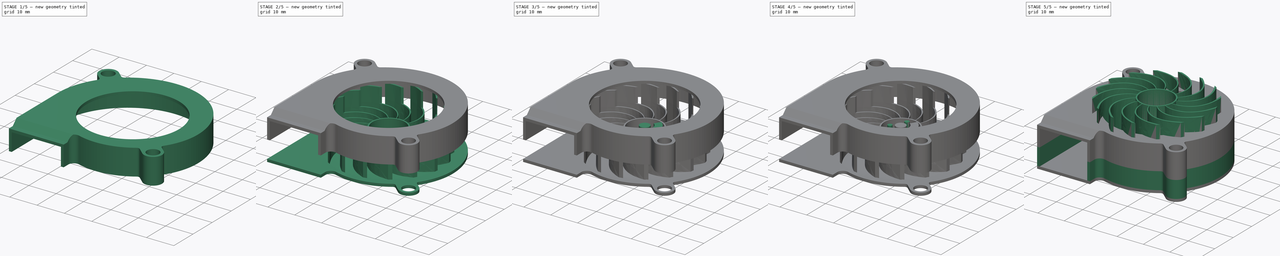
[diagram: build sequence overview — one tinted view per stage of 5, left to right]
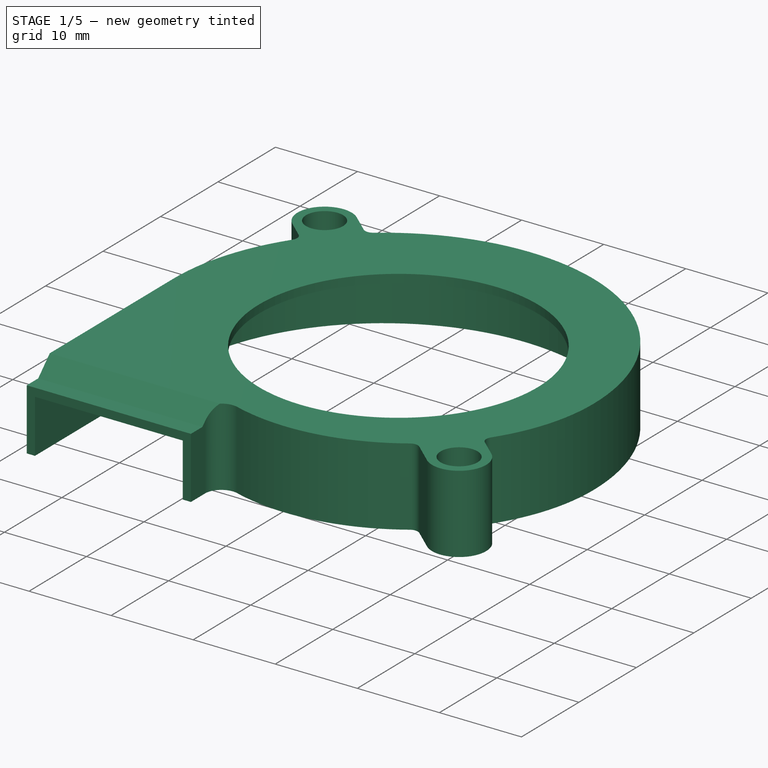
[diagram: stage 1 of 5 — iso view after this stage's code; geometry added in this stage tinted green]
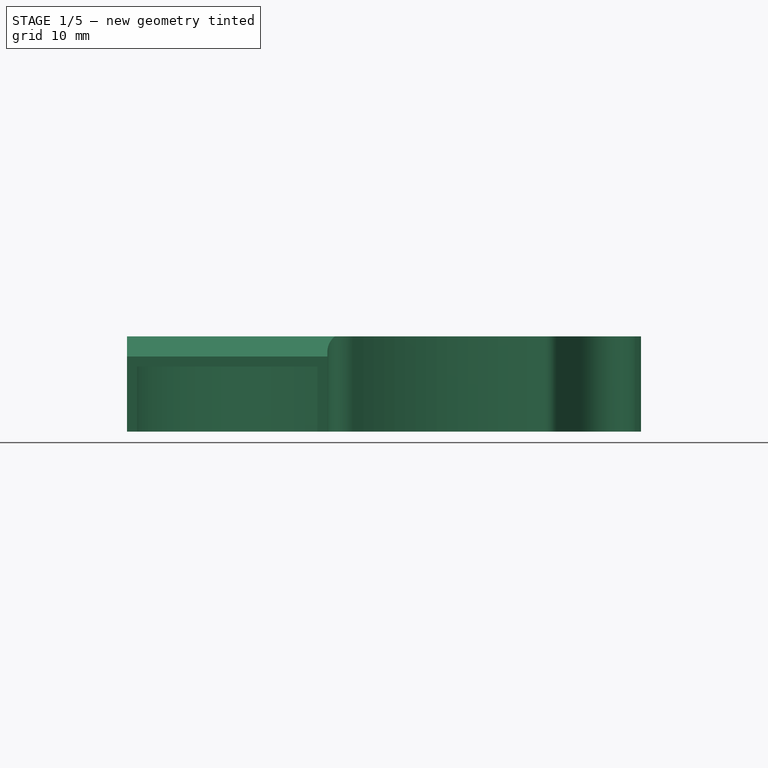
[diagram: stage 1 of 5 — front view after this stage's code; geometry added in this stage tinted green]
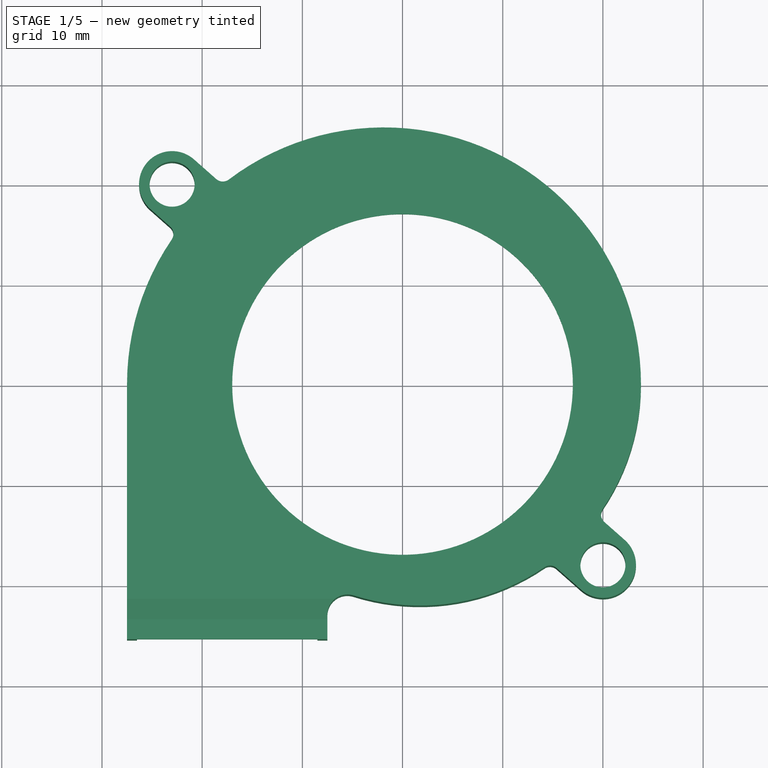
[diagram: stage 1 of 5 — top view after this stage's code; geometry added in this stage tinted green]
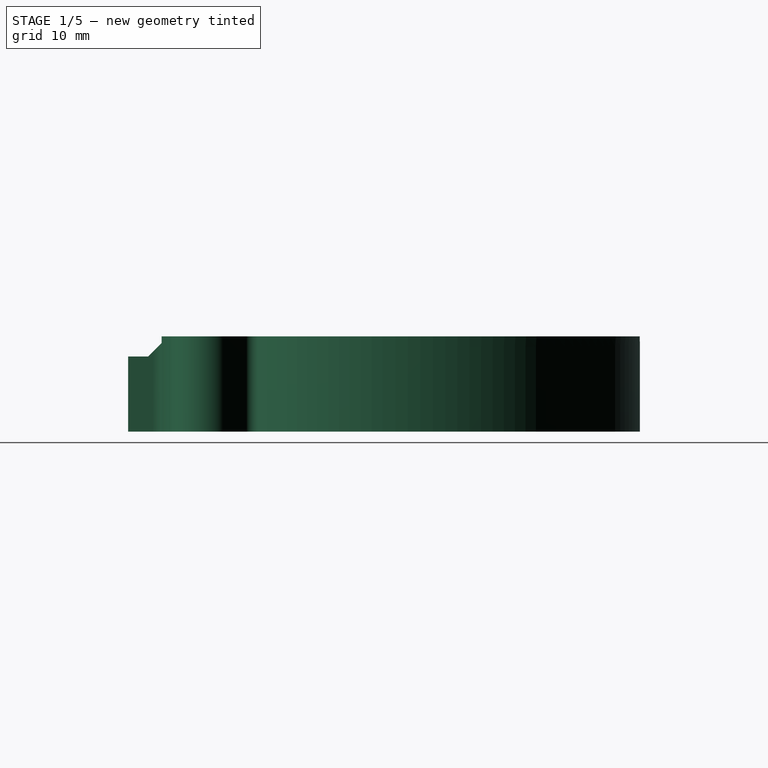
[diagram: stage 1 of 5 — right view after this stage's code; geometry added in this stage tinted green]
FCSTD DOCUMENT  (FreeCAD 0.19R24291 (Git))
Label: 5015-fan-mod
License: Other
LicenseURL: GPL3
objects: Part::Feature×14, Part::Cylinder×13, Part::MultiFuse×8, Sketcher::SketchObject×6, Part::Cut×5, PartDesign::Pad×4, Part::Extrusion×4, PartDesign::Body×3, App::Part×2, PartDesign::Plane×2, Part::FeaturePython×2, Part::MultiCommon×2, PartDesign::Revolution×1, PartDesign::PolarPattern×1, PartDesign::Pocket×1, Part::Box×1, Part::Chamfer×1
note: 74 computed .brp shape members not serialized (recipe doc carries the construction recipe); baked Part::Feature solids carry a one-line shape summary decoded from their .brp

FEATURE [Part::Feature] Part__Feature004_cs002  label="wall-base-profile002"
  Placement = pos=(0,0,3.5) rot=(0,0,1;0rad)
  shape: bbox 51.3 x 51.07 x 3e-07 mm, 0 faces, 0 solids (baked)
FEATURE [Part::Extrusion] Extrude002
  Base = -> Part__Feature004_cs002
  Dir = (0,0,1)
  DirMode = 2
  FaceMakerClass = Part::FaceMakerBullseye
  LengthFwd = 8.5
  LengthRev = 0
  Solid = true
  Symmetric = false
FEATURE [Part::Feature] Fusion001_cs002  label="flat-base-profile002"
  Placement = pos=(0,0,14) rot=(0,0,1;0rad)
  shape: bbox 51.3 x 51.07 x 4e-07 mm, 0 faces, 0 solids (baked)
FEATURE [Part::Extrusion] Extrude003
  Base = -> Fusion001_cs002
  Dir = (0,0,1)
  DirMode = 2
  FaceMakerClass = Part::FaceMakerBullseye
  LengthFwd = 1
  LengthRev = 0
  Placement = pos=(0,0,2) rot=(0,0,1;0rad)
  Solid = true
  Symmetric = false
FEATURE [Part::Cylinder] Cylinder008
  Angle = 360
  AttacherType = Attacher::AttachEngine3D
  Height = 21
  Radius = 17
FEATURE [Part::MultiFuse] Fusion009
  Shapes = -> [Extrude003,Extrude002]
FEATURE [Part::Cut] Cut004
  Base = -> Fusion009
  Tool = -> Cylinder008
FEATURE [PartDesign::Body] Body002002
  Group = -> [Sketch007,Pad003]
  Origin = -> Origin005
  Tip = -> Pad003
FEATURE [Part::Feature] Body002002001
  Placement = pos=(-12.5,-18.4,10) rot=(0,0,1;3.14159rad)
  shape: bbox 15 x 4 x 3 mm, 8 faces (baked)
FEATURE [Part::Feature] Body002002002
  Placement = pos=(-7.5,-18.4,10) rot=(0,0,1;3.14159rad)
  shape: bbox 15 x 4 x 3 mm, 8 faces (baked)
FEATURE [Part::Box] Box  label="Cube"
  AttacherType = Attacher::AttachEngine3D
  Height = 10
  Length = 22
  Placement = pos=(-27.5,-31.4,15) rot=(0,0,1;0rad)
  Width = 10
FEATURE [Part::Chamfer] Chamfer
  Base = -> Box
  Edges = 1 edges r=2: [Edge11]
FEATURE [Part::MultiFuse] Fusion012
  Shapes = -> [Body002002002,Body002002001,Cut004]
FEATURE [Part::Cut] Cut006
  Base = -> Fusion012
  Tool = -> Chamfer
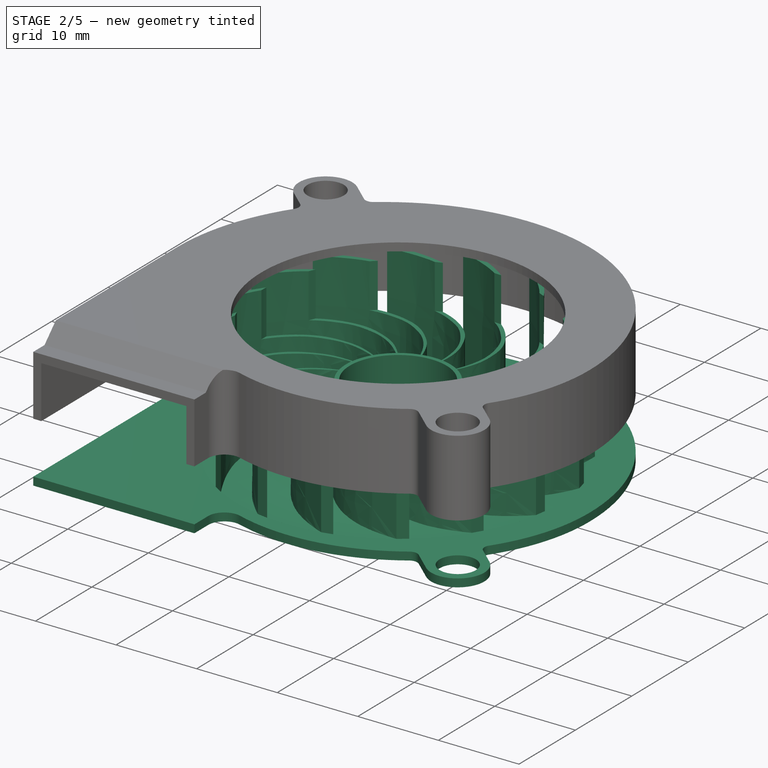
[diagram: stage 2 of 5 — iso view after this stage's code; geometry added in this stage tinted green]
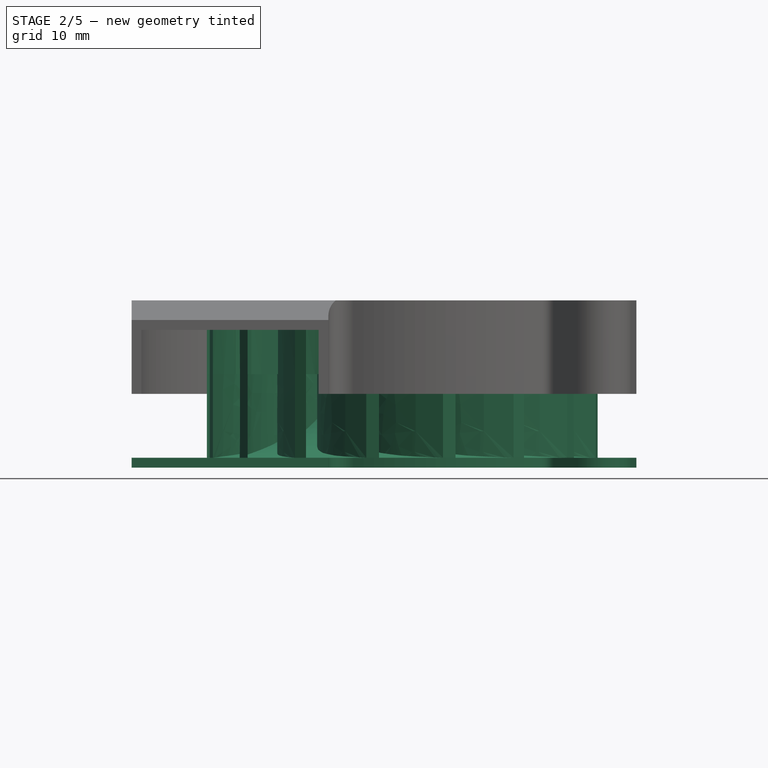
[diagram: stage 2 of 5 — front view after this stage's code; geometry added in this stage tinted green]
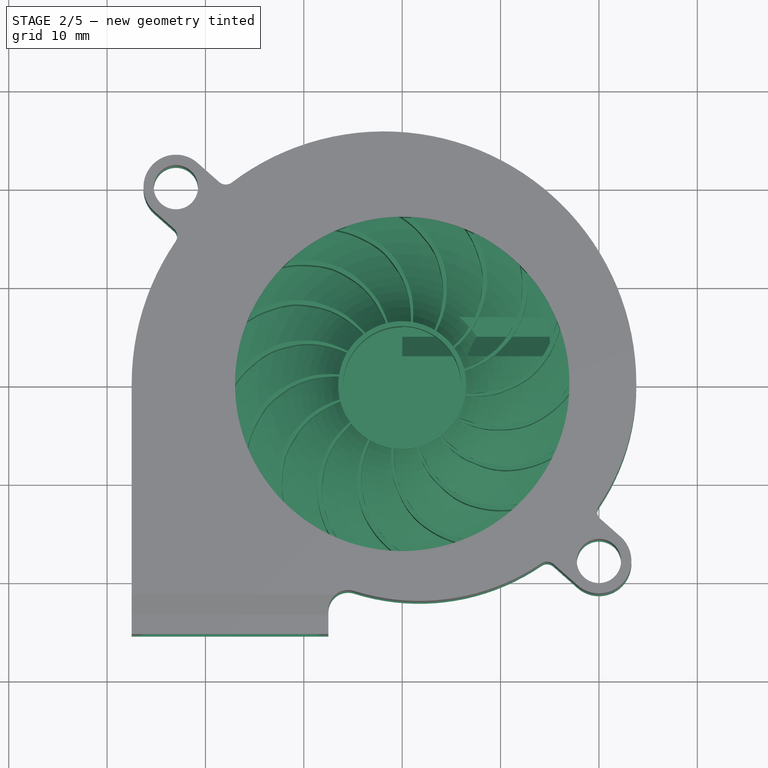
[diagram: stage 2 of 5 — top view after this stage's code; geometry added in this stage tinted green]
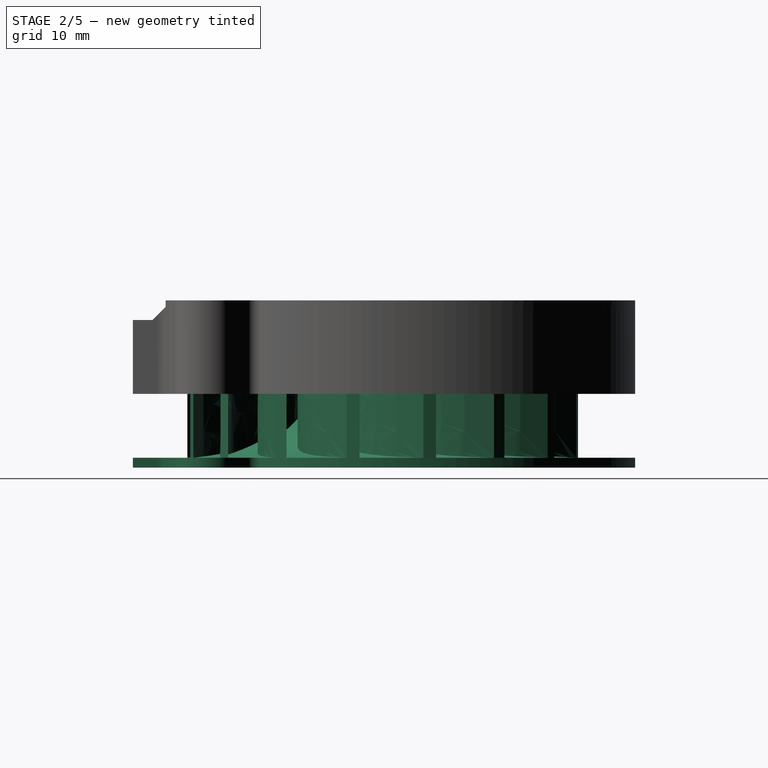
[diagram: stage 2 of 5 — right view after this stage's code; geometry added in this stage tinted green]
FEATURE [Part::Cylinder] Cylinder
  Angle = 360
  AttacherType = Attacher::AttachEngine3D
  Height = 9.5
  Radius = 24
FEATURE [Part::Feature] Fusion001_cs001  label="flat-base-profile001"
  shape: bbox 51.3 x 51.07 x 4e-07 mm, 0 faces, 0 solids (baked)
FEATURE [Part::Extrusion] Extrude  label="bottom-plate"
  Base = -> Fusion001_cs001
  Dir = (0,0,1)
  DirMode = 2
  FaceMakerClass = Part::FaceMakerBullseye
  LengthFwd = 1
  LengthRev = 0
  Solid = true
  Symmetric = false
FEATURE [PartDesign::Body] Body002  label="ramp"
  Group = -> [Sketch004,Revolution]
  Origin = -> Origin004
  Tip = -> Revolution
FEATURE [Part::FeaturePython] Tube001  # WARN: FeaturePython — macro-defined, semantics opaque (R4)
  AttacherType = Attacher::AttachEngine3D
  Height = 15
  InnerRadius = 17
  OuterRadius = 20
FEATURE [Part::Feature] Body002001  label="ramp001"
  Placement = pos=(0,0,-1) rot=(0,0,1;0rad)
  shape: bbox 40 x 40 x 9.5 mm, 4 faces (baked)
FEATURE [Part::MultiFuse] Fusion007
  Shapes = -> [Tube001,Cylinder]
FEATURE [Part::MultiCommon] Common
  Shapes = -> [Body003,Fusion007]
FEATURE [Part::Cylinder] Cylinder012
  Angle = 360
  AttacherType = Attacher::AttachEngine3D
  Height = 1
  Placement = pos=(0,0,-1) rot=(0,0,1;0rad)
  Radius = 25
FEATURE [Part::Cut] Cut
  Base = -> Body002001
  Tool = -> Cylinder012
FEATURE [Sketcher::SketchObject] Sketch007
  FullyConstrained = false
  MapMode = 5
  Placement = pos=(0,0,0) rot=(0.57735,0.57735,0.57735;2.0944rad)
  Support = -> [YZ_Plane005]
  sketch-geometry (6):
    g0: LineSegment StartX=5 StartY=4 StartZ=0 EndX=7 EndY=4 EndZ=0
    g1: LineSegment StartX=5 StartY=4 StartZ=0 EndX=3 EndY=6 EndZ=0
    g2: LineSegment StartX=7 StartY=4 StartZ=0 EndX=7 EndY=5 EndZ=0
    g3: LineSegment StartX=5 StartY=5 StartZ=0 EndX=7 EndY=5 EndZ=0
    g4: LineSegment StartX=5 StartY=5 StartZ=0 EndX=3 EndY=7 EndZ=0
    g5: LineSegment StartX=3 StartY=7 StartZ=0 EndX=3 EndY=6 EndZ=0
  constraints (10):
    c: Horizontal(g0)
    c: Coincident(g1,g0)
    c: Coincident(g2,g0)
    c: Vertical(g2)
    c: Coincident(g3,g2)
    c: Horizontal(g3)
    c: Coincident(g4,g3)
    c: Coincident(g5,g4)
    c: Coincident(g5,g1)
    c: Vertical(g5)
FEATURE [PartDesign::Pad] Pad003
  Direction = (1,1,1)
  Length = 15
  Length2 = 100
  Placement = pos=(0,0,0) rot=(0.57735,0.57735,0.57735;2.0944rad)
  Profile = -> Sketch007
  Type = 0
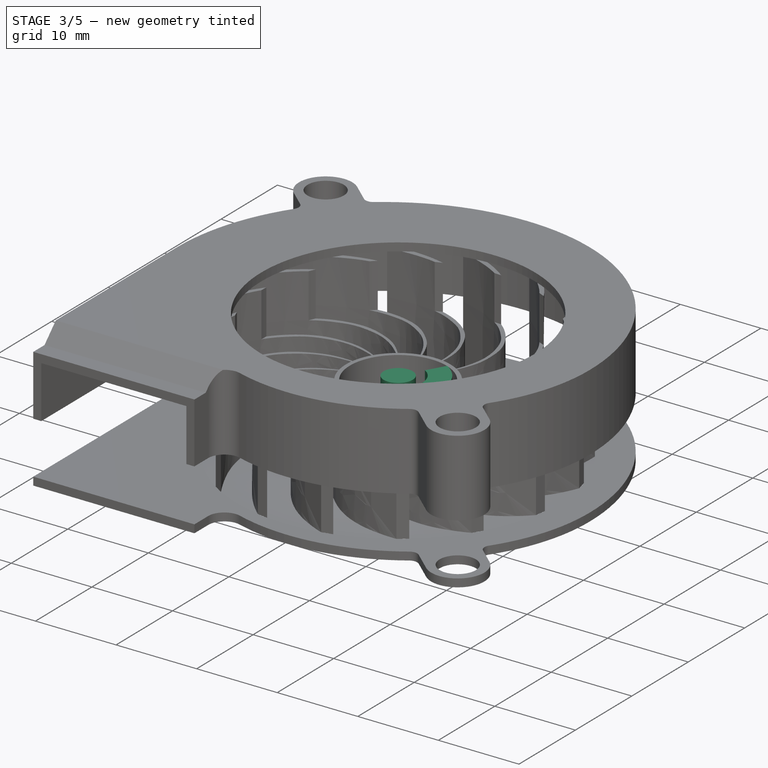
[diagram: stage 3 of 5 — iso view after this stage's code; geometry added in this stage tinted green]
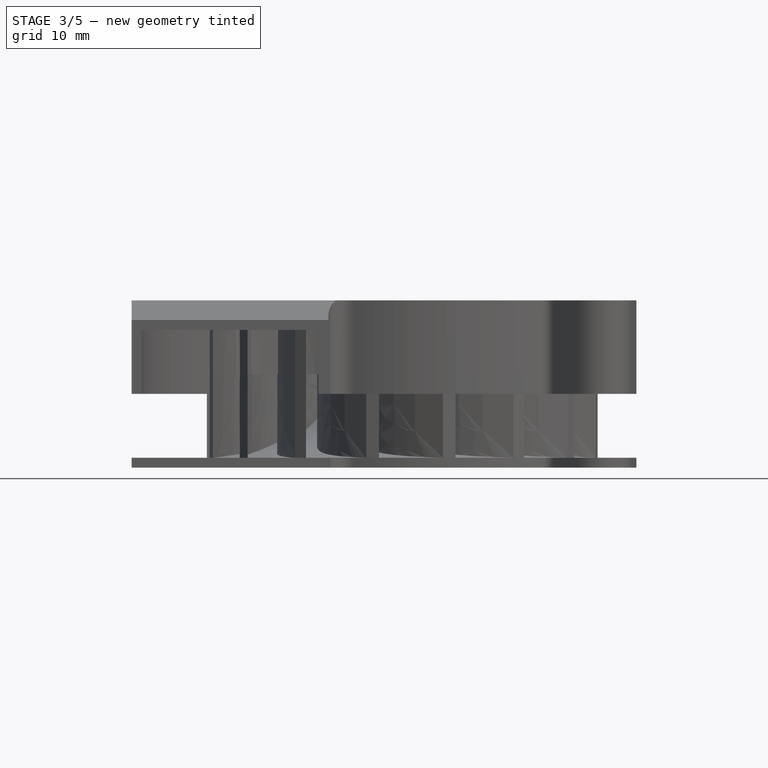
[diagram: stage 3 of 5 — front view after this stage's code; geometry added in this stage tinted green]
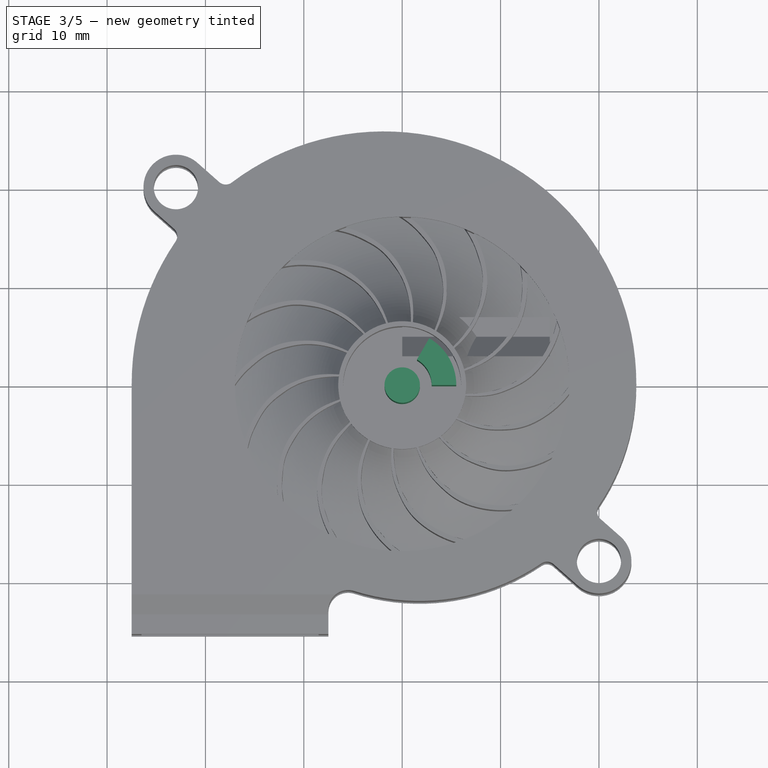
[diagram: stage 3 of 5 — top view after this stage's code; geometry added in this stage tinted green]
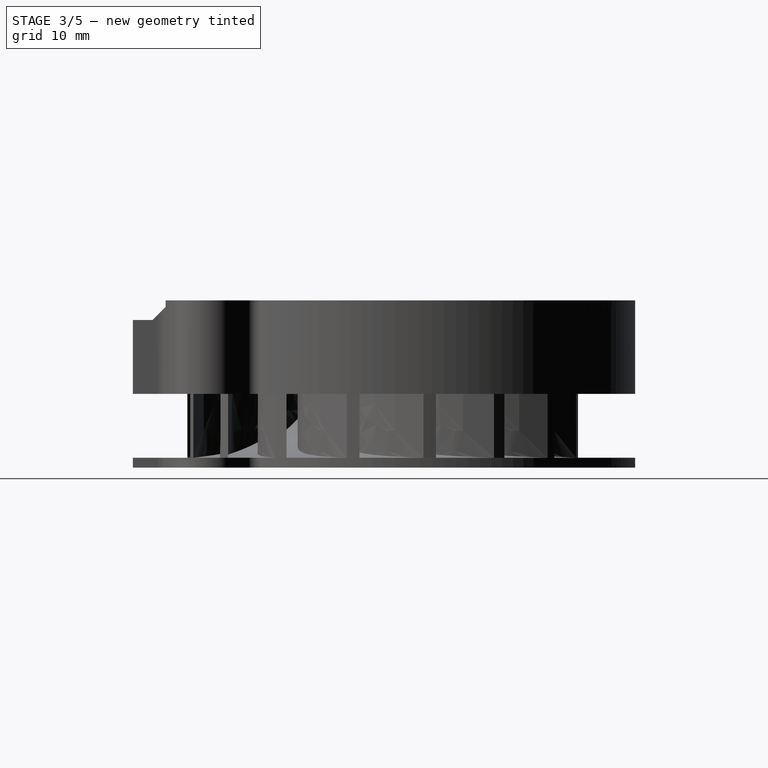
[diagram: stage 3 of 5 — right view after this stage's code; geometry added in this stage tinted green]
FEATURE [Part::Cylinder] Cylinder006
  Angle = 360
  AttacherType = Attacher::AttachEngine3D
  Height = 0.6
  Placement = pos=(0,3.3,0) rot=(0,0,1;0rad)
  Radius = 1.4
FEATURE [Part::Cylinder] Cylinder007
  Angle = 360
  AttacherType = Attacher::AttachEngine3D
  Height = 10
  Radius = 1.8
FEATURE [Part::FeaturePython] Tube  # WARN: FeaturePython — macro-defined, semantics opaque (R4)
  AttacherType = Attacher::AttachEngine3D
  Height = 10
  InnerRadius = 3
  OuterRadius = 5.5
FEATURE [Part::Cylinder] Cylinder009
  Angle = 60
  AttacherType = Attacher::AttachEngine3D
  Height = 10
  Radius = 5.5
FEATURE [Part::Cylinder] Cylinder010
  Angle = 60
  AttacherType = Attacher::AttachEngine3D
  Height = 2
  Radius = 6
FEATURE [Part::MultiCommon] Common001
  Shapes = -> [Cylinder009,Tube]
FEATURE [Part::Cylinder] Cylinder011
  Angle = 360
  AttacherType = Attacher::AttachEngine3D
  Height = 10
  Radius = 4
FEATURE [Part::Cut] Cut003
  Base = -> Cylinder010
  Tool = -> Cylinder011
FEATURE [Part::MultiFuse] Fusion010
  Shapes = -> [Extrude,Cut,Common]
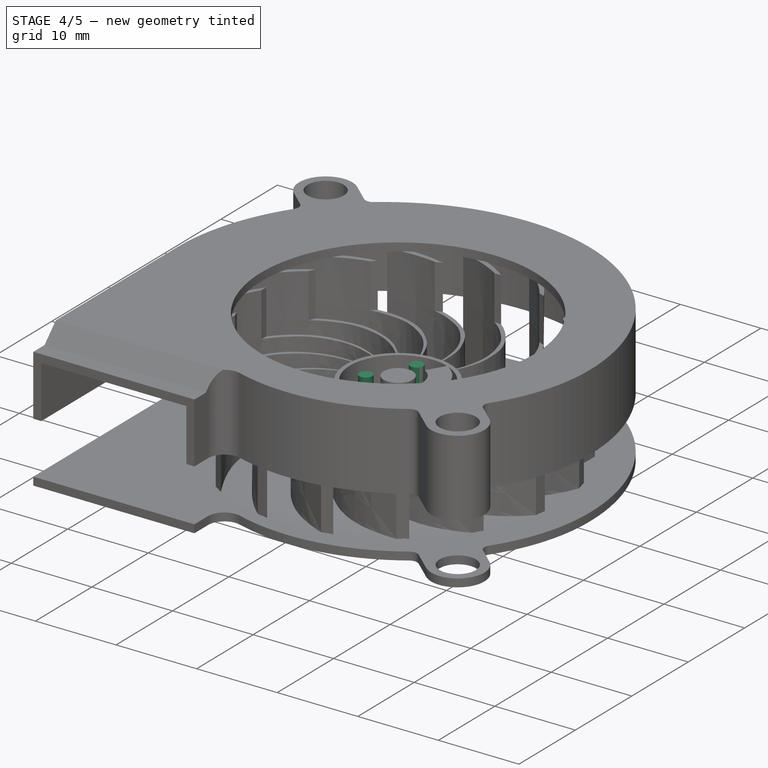
[diagram: stage 4 of 5 — iso view after this stage's code; geometry added in this stage tinted green]
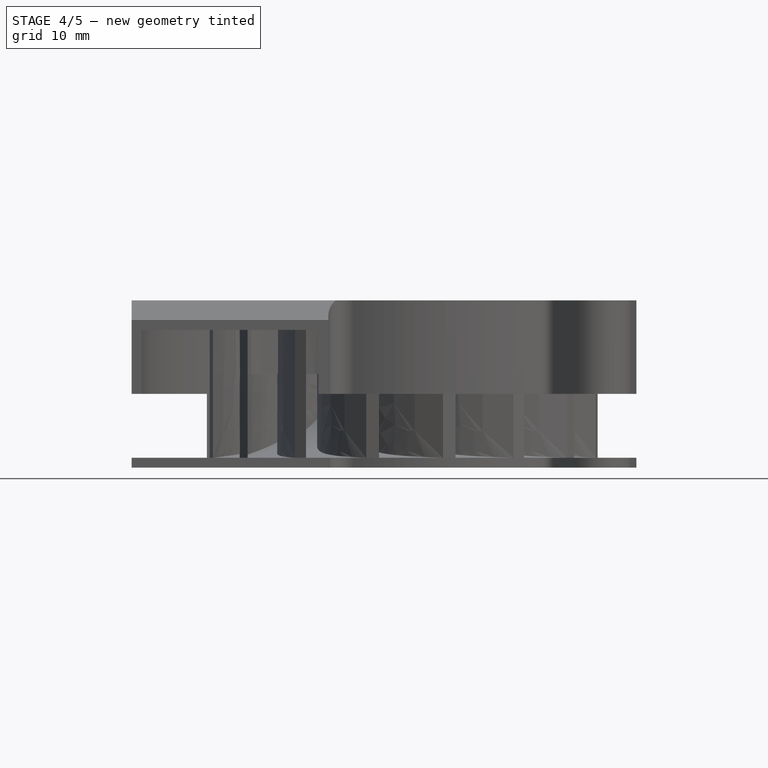
[diagram: stage 4 of 5 — front view after this stage's code; geometry added in this stage tinted green]
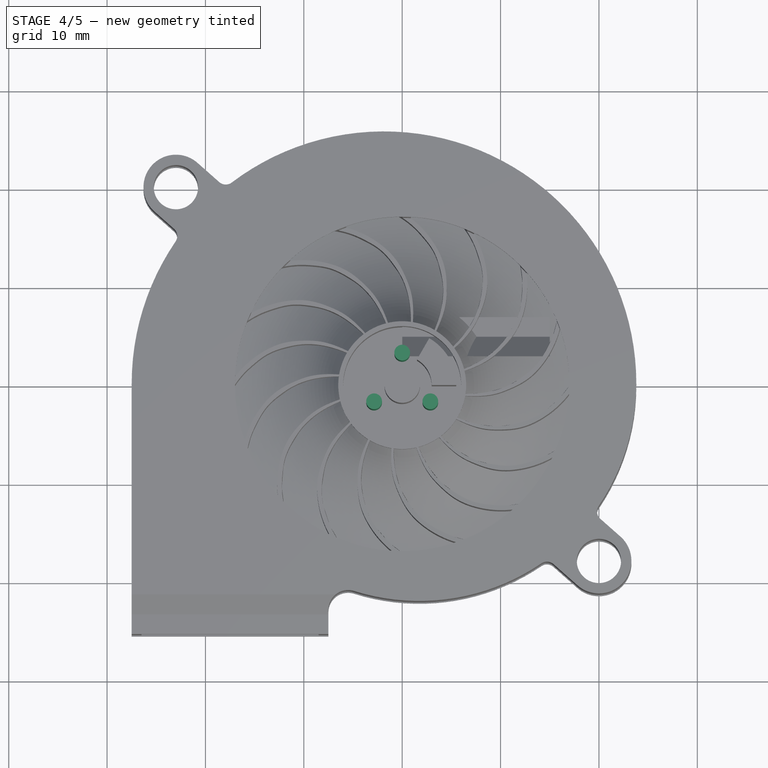
[diagram: stage 4 of 5 — top view after this stage's code; geometry added in this stage tinted green]
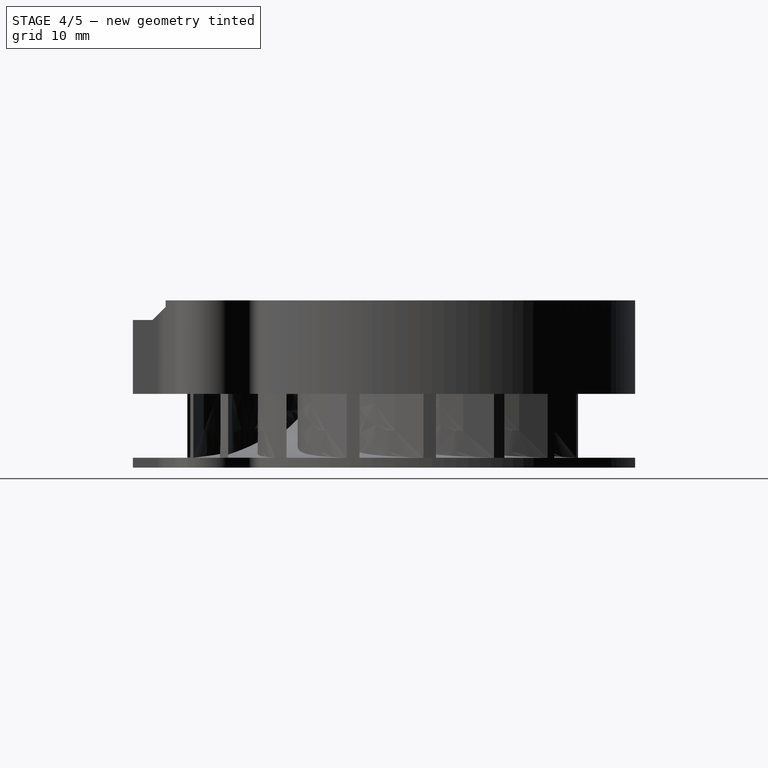
[diagram: stage 4 of 5 — right view after this stage's code; geometry added in this stage tinted green]
FEATURE [Part::Cylinder] Cylinder001
  Angle = 360
  AttacherType = Attacher::AttachEngine3D
  Height = 10
  Placement = pos=(0,3.3,0) rot=(0,0,1;0rad)
  Radius = 0.8
FEATURE [Part::Cylinder] Cylinder002
  Angle = 360
  AttacherType = Attacher::AttachEngine3D
  Height = 10
  Placement = pos=(-2.85788,-1.65,0) rot=(0,0,1;2.0944rad)
  Radius = 0.8
FEATURE [Part::Cylinder] Cylinder003
  Angle = 360
  AttacherType = Attacher::AttachEngine3D
  Height = 10
  Placement = pos=(2.85788,-1.65,0) rot=(0,0,-1;2.0944rad)
  Radius = 0.8
FEATURE [Part::Cylinder] Cylinder004
  Angle = 360
  AttacherType = Attacher::AttachEngine3D
  Height = 0.6
  Placement = pos=(2.85788,-1.65,0) rot=(0,0,1;4.18879rad)
  Radius = 1.4
FEATURE [Part::Cylinder] Cylinder005
  Angle = 360
  AttacherType = Attacher::AttachEngine3D
  Height = 0.6
  Placement = pos=(-2.85788,-1.65,0) rot=(0,0,1;2.0944rad)
  Radius = 1.4
FEATURE [Part::MultiFuse] Fusion
  Shapes = -> [Cylinder006,Cylinder005,Cylinder004,Cylinder003,Cylinder002,Cylinder001]
FEATURE [Part::MultiFuse] Fusion001  label="motor-bolt"
  Shapes = -> [Cylinder007,Fusion]
FEATURE [PartDesign::Body] Body  label="fin"
  Group = -> [Sketch,Pad,DatumPlane,Sketch001,Pad001,PolarPattern,Sketch005,Pad002,DatumPlane001,Sketch006,Pocket]
  Origin = -> Origin
  Tip = -> Pocket
FEATURE [Part::Feature] Body003  label="fin001"
  Placement = pos=(0,0,-1) rot=(0,0,1;0rad)
  shape: bbox 40 x 40 x 22 mm, 149 faces (baked)
FEATURE [Part::MultiFuse] Fusion006
  Shapes = -> [Cut003,Common001,Fusion001]
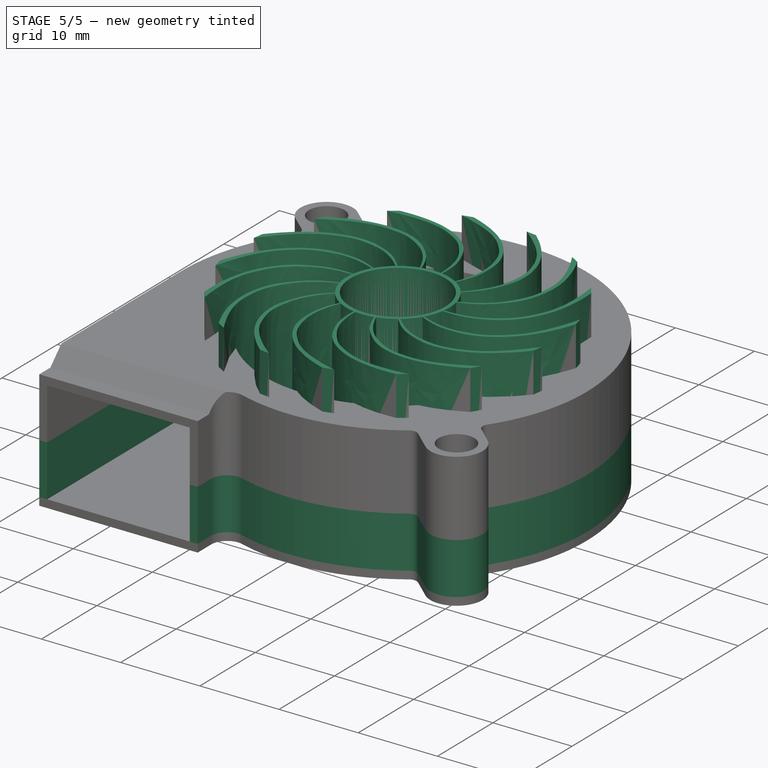
[diagram: stage 5 of 5 — iso view after this stage's code; geometry added in this stage tinted green]
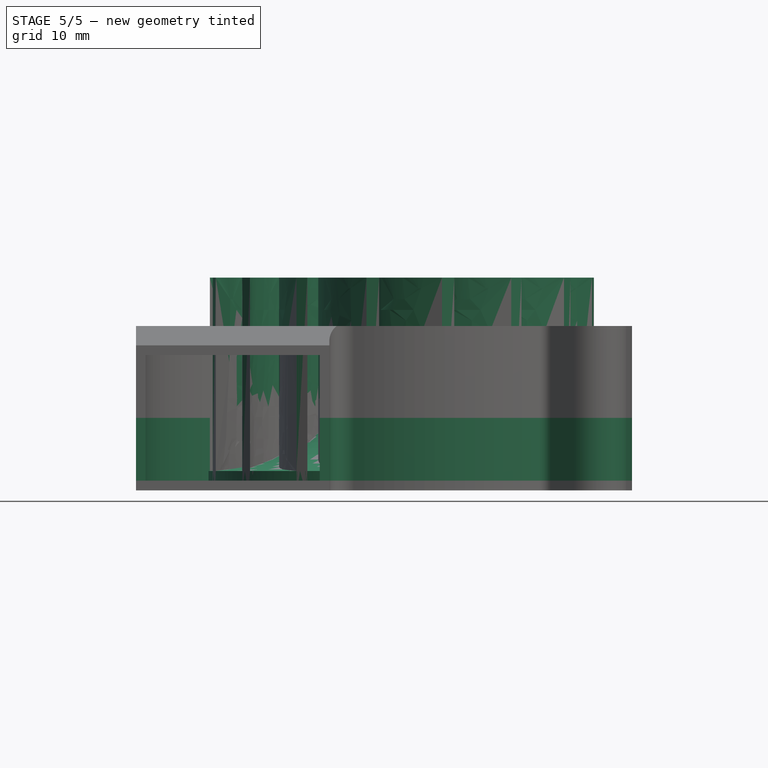
[diagram: stage 5 of 5 — front view after this stage's code; geometry added in this stage tinted green]
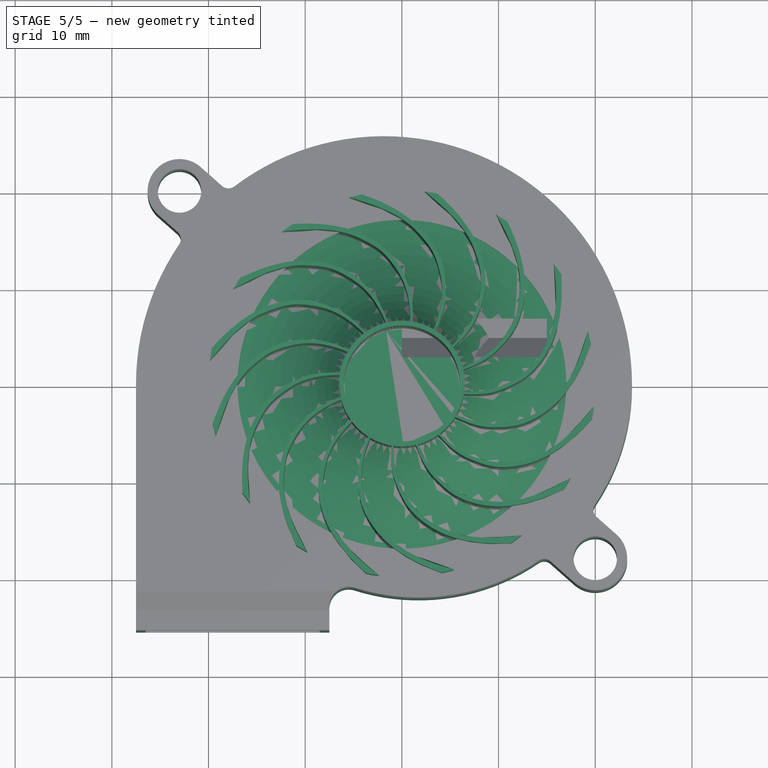
[diagram: stage 5 of 5 — top view after this stage's code; geometry added in this stage tinted green]
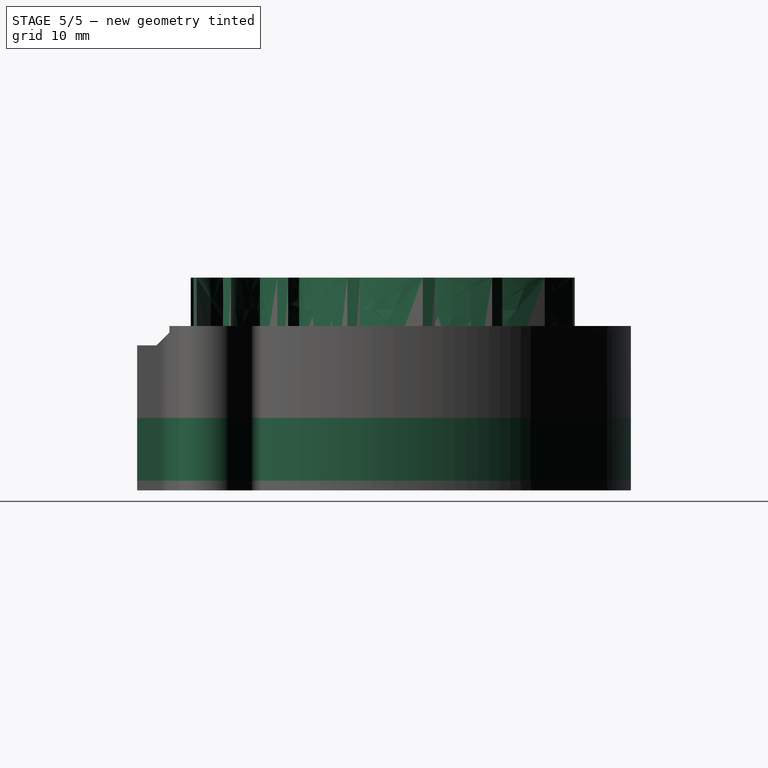
[diagram: stage 5 of 5 — right view after this stage's code; geometry added in this stage tinted green]
FEATURE [Part::Feature] Part__Feature003  label="bottom001"
  shape: bbox 4.5 x 0.5 x 5.2 mm, 6 faces (baked)
FEATURE [Part::Feature] Part__Feature002  label="bottom"
  shape: bbox 52.92 x 8.501 x 51.38 mm, 117 faces (baked)
FEATURE [Part::Feature] Part__Feature  label="turbine"
  Placement = pos=(0,3.2,0) rot=(0,1,0;0.138121rad)
  shape: bbox 38.92 x 10.5 x 38.96 mm, 229 faces (baked)
FEATURE [Part::Feature] Part__Feature001  label="top"
  Placement = pos=(-4e-15,15,1e-15) rot=(0,0,1;0rad)
  shape: bbox 51.3 x 8 x 51.07 mm, 45 faces (baked)
FEATURE [App::Part] bottom  label="bottom002"
  Group = -> [Part__Feature002,Part__Feature003]
  Origin = -> Origin002
FEATURE [App::Part] Radial_Cooling_Fan_5015_DC12V  label="Radial-Cooling-Fan-5015-DC12V"
  Group = -> [Part__Feature,Part__Feature001,bottom]
  Origin = -> Origin003
  Placement = pos=(0,0,0) rot=(1,0,0;1.5708rad)
FEATURE [Part::Feature] Fusion001_cs  label="flat-base-profile"
  shape: bbox 51.3 x 51.07 x 4e-07 mm, 0 faces, 0 solids (baked)
FEATURE [Sketcher::SketchObject] Sketch
  FullyConstrained = true
  MapMode = 5
  Support = -> [XY_Plane]
  sketch-geometry (1):
    g0: Circle CenterX=0 CenterY=0 CenterZ=0 NormalX=0 NormalY=0 NormalZ=1 AngleXU=0 Radius=20
  constraints (2):
    c: Coincident(g0,g-1)
    c: Radius(g0) = 20
FEATURE [PartDesign::Pad] Pad
  Direction = (1,1,1)
  Length = 2
  Length2 = 100
  Profile = -> Sketch
  Type = 0
FEATURE [PartDesign::Plane] DatumPlane
  AttachmentOffset = pos=(0,0,2) rot=(0,0,1;0rad)
  Length = 60
  MapMode = 5
  Placement = pos=(0,0,2) rot=(0,0,1;0rad)
  ResizeMode = 0
  Support = -> [XY_Plane]
  Width = 60
FEATURE [Sketcher::SketchObject] Sketch001
  FullyConstrained = false
  MapMode = 5
  Placement = pos=(0,0,2) rot=(0,0,1;0rad)
  Support = -> [DatumPlane]
  sketch-geometry (24):
    g0: Circle CenterX=0 CenterY=0 CenterZ=0 NormalX=0 NormalY=0 NormalZ=1 AngleXU=0 Radius=20
    g1-g6: Circle x6 (B-spline internal-alignment scaffolding for g7; pole/knot coordinates omitted)
    g7: BSplineCurve PolesCount=6 KnotsCount=4 Degree=3 IsPeriodic=0
    g8-g11: GeomPoint x4 (B-spline internal-alignment scaffolding for g7; pole/knot coordinates omitted)
    g12-g17: Circle x6 (B-spline internal-alignment scaffolding for g18; pole/knot coordinates omitted)
    g18: BSplineCurve PolesCount=6 KnotsCount=4 Degree=3 IsPeriodic=0
    g19-g22: GeomPoint x4 (B-spline internal-alignment scaffolding for g18; pole/knot coordinates omitted)
    g23: LineSegment StartX=-16.7666 StartY=10.9033 StartZ=0 EndX=-17.4466 EndY=9.77831 EndZ=0
  constraints (16):
    c: Coincident(g0,g-1)
    c: Radius(g0) = 20
    c: Coincident(g7,g-1)
    c: Weight(g1) = 1
    c: Equal(g1, g2-g6) x5
    c: PointOnObject(g7,g0)
    c: InternalAlignment(g1-g6 -> g7) x6
    c: InternalAlignment(g8-g11 -> g7) x4
    c: Coincident(g18,g7)
    c: Weight(g12) = 1
    c: Equal(g12, g13-g17) x5
    c: PointOnObject(g18,g0)
    c: InternalAlignment(g12-g17 -> g18) x6
    c: InternalAlignment(g19-g22 -> g18) x4
    c: Coincident(g23,g18)
    c: Coincident(g7,g23)
FEATURE [PartDesign::Pad] Pad001
  BaseFeature = -> Pad
  Direction = (1,1,1)
  Length = 20
  Length2 = 100
  Profile = -> Sketch001
  Type = 0
FEATURE [Part::Feature] Part__Feature004_cs  label="wall-base-profile"
  Placement = pos=(0,0,-3) rot=(0,0,1;0rad)
  shape: bbox 51.3 x 51.07 x 3e-07 mm, 0 faces, 0 solids (baked)
FEATURE [Part::Feature] Part__Feature004_cs001  label="wall-base-profile001"
  Placement = pos=(0,0,-3) rot=(0,0,1;0rad)
  shape: bbox 51.3 x 51.07 x 3e-07 mm, 0 faces, 0 solids (baked)
FEATURE [Part::Extrusion] Extrude001  label="bottom-wall"
  Base = -> Part__Feature004_cs001
  Dir = (0,0,1)
  DirMode = 2
  FaceMakerClass = Part::FaceMakerBullseye
  LengthFwd = 6.5
  LengthRev = 0
  Solid = true
  Symmetric = false
FEATURE [Sketcher::SketchObject] Sketch004
  FullyConstrained = false
  MapMode = 5
  Placement = pos=(0,0,0) rot=(1,0,0;1.5708rad)
  Support = -> [XZ_Plane004]
  sketch-geometry (12):
    g0: LineSegment StartX=-6.25 StartY=0 StartZ=0 EndX=-6.25 EndY=9.5 EndZ=0
    g1-g5: Circle x5 (B-spline internal-alignment scaffolding for g6; pole/knot coordinates omitted)
    g6: BSplineCurve PolesCount=5 KnotsCount=3 Degree=3 IsPeriodic=0
    g7: GeomPoint X=-6.25 Y=9.5 Z=0
    g8: GeomPoint X=-11.7614 Y=4.10389 Z=0
    g9: GeomPoint X=-20 Y=2 Z=0
    g10: LineSegment StartX=-20 StartY=2 StartZ=0 EndX=-20 EndY=0 EndZ=0
    g11: LineSegment StartX=-20 StartY=0 StartZ=0 EndX=-6.25 EndY=0 EndZ=0
  constraints (17):
    c: Vertical(g0)
    c: Coincident(g6,g0)
    c: Weight(g1) = 1
    c: Equal(g1, g2-g5) x4
    c: InternalAlignment(g1-g5 -> g6) x5
    c: InternalAlignment(g7,g6)
    c: InternalAlignment(g8,g6)
    c: InternalAlignment(g9,g6)
    c: DistanceX(g0,g-1) = 6.25
    c: DistanceX(g6,g0) = 13.75
    c: DistanceY(g0,g0) = 9.5
    c: Coincident(g10,g6)
    c: Vertical(g10)
    c: Coincident(g11,g10)
    c: Coincident(g11,g0)
    c: Horizontal(g11)
    c: DistanceY(g10,g10) = 2
FEATURE [PartDesign::Revolution] Revolution
  Angle = 360
  Axis = (0,2e-16,1)
  Base = (0,0,0)
  Placement = pos=(0,0,0) rot=(1,0,0;1.5708rad)
  Profile = -> Sketch004
  ReferenceAxis = -> Sketch004 [V_Axis]
FEATURE [PartDesign::PolarPattern] PolarPattern
  Angle = 360
  Axis = -> Sketch001 [N_Axis]
  BaseFeature = -> Pad001
  Occurrences = 16
  Originals = -> [Pad001]
FEATURE [Sketcher::SketchObject] Sketch005
  FullyConstrained = true
  MapMode = 5
  Placement = pos=(0,0,2) rot=(0,0,1;0rad)
  Support = -> [DatumPlane]
  sketch-geometry (1):
    g0: Circle CenterX=0 CenterY=0 CenterZ=0 NormalX=0 NormalY=0 NormalZ=1 AngleXU=0 Radius=6.5
  constraints (2):
    c: Coincident(g0,g-1)
    c: Radius(g0) = 6.5
FEATURE [PartDesign::Pad] Pad002
  BaseFeature = -> PolarPattern
  Direction = (1,1,1)
  Length = 20
  Length2 = 100
  Profile = -> Sketch005
  Type = 0
FEATURE [PartDesign::Plane] DatumPlane001
  AttachmentOffset = pos=(0,0,3) rot=(0,0,1;0rad)
  Length = 60
  MapMode = 5
  Placement = pos=(0,0,3) rot=(0,0,1;0rad)
  ResizeMode = 0
  Support = -> [XY_Plane]
  Width = 60
FEATURE [Sketcher::SketchObject] Sketch006
  FullyConstrained = true
  MapMode = 5
  Placement = pos=(0,0,3) rot=(0,0,1;0rad)
  Support = -> [DatumPlane001]
  sketch-geometry (1):
    g0: Circle CenterX=0 CenterY=0 CenterZ=0 NormalX=0 NormalY=0 NormalZ=1 AngleXU=0 Radius=6
  constraints (2):
    c: Coincident(g0,g-1)
    c: Radius(g0) = 6
FEATURE [PartDesign::Pocket] Pocket
  BaseFeature = -> Pad002
  Length = 5
  Length2 = 100
  Profile = -> Sketch006
  Reversed = true
  Type = 1
FEATURE [Part::Cut] Cut005
  Base = -> Fusion010
  Tool = -> Fusion006
FEATURE [Part::MultiFuse] Fusion011
  Shapes = -> [Extrude001,Cut005]
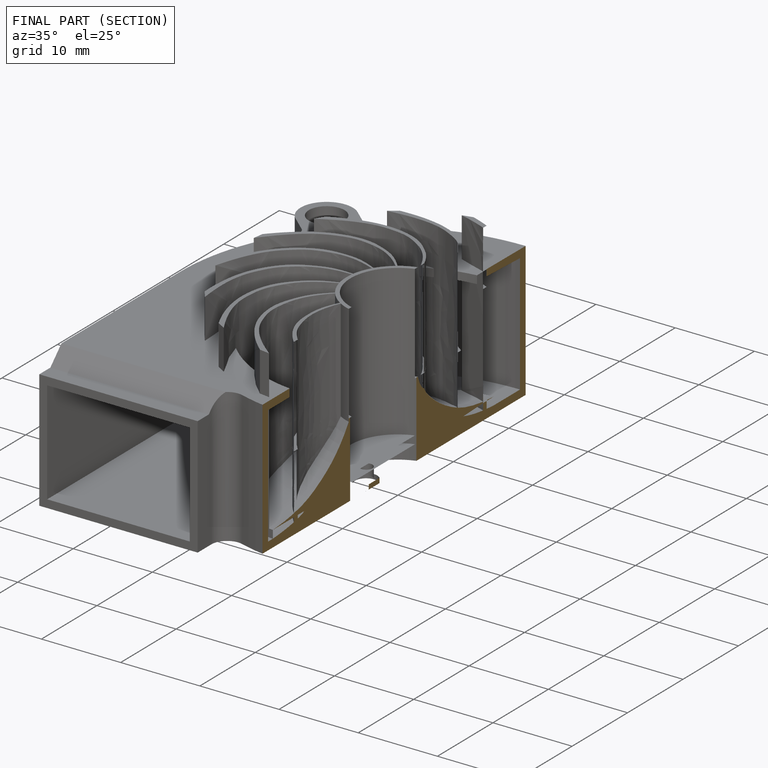
[diagram: finished part — half-section view (interior)]
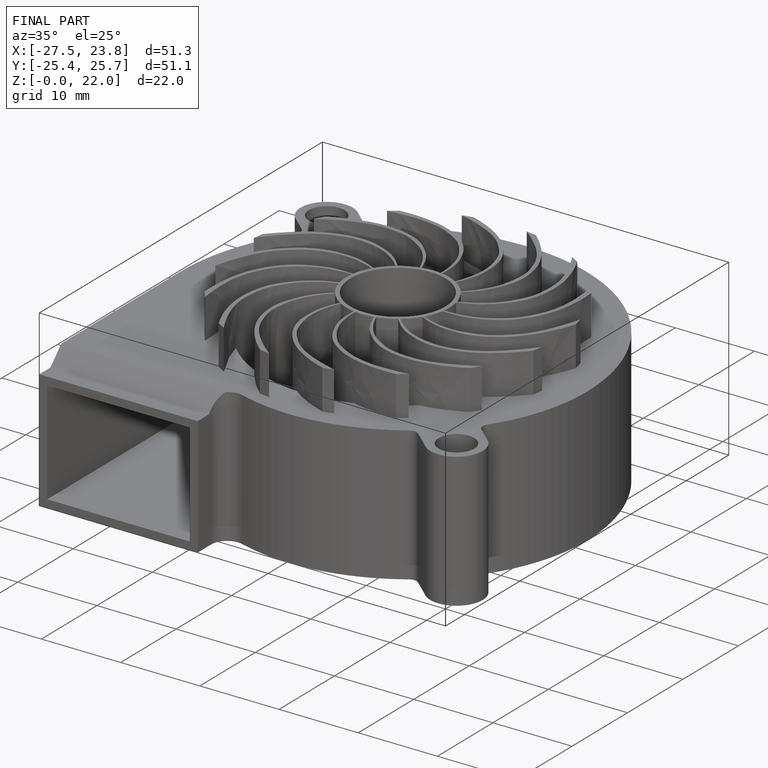
[diagram: finished part — iso view with bounding-box wireframe]
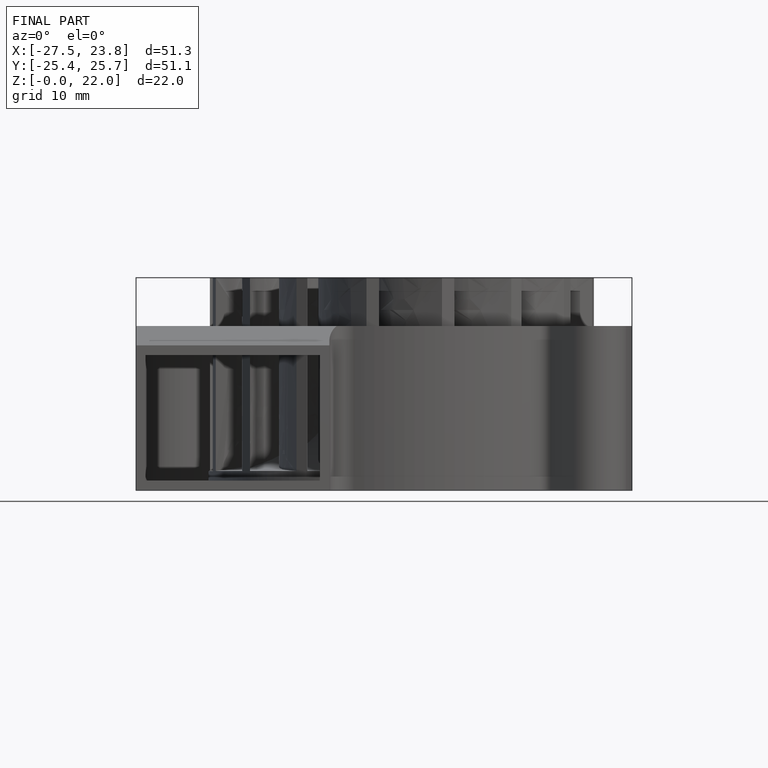
[diagram: finished part — front view with bounding-box wireframe]
